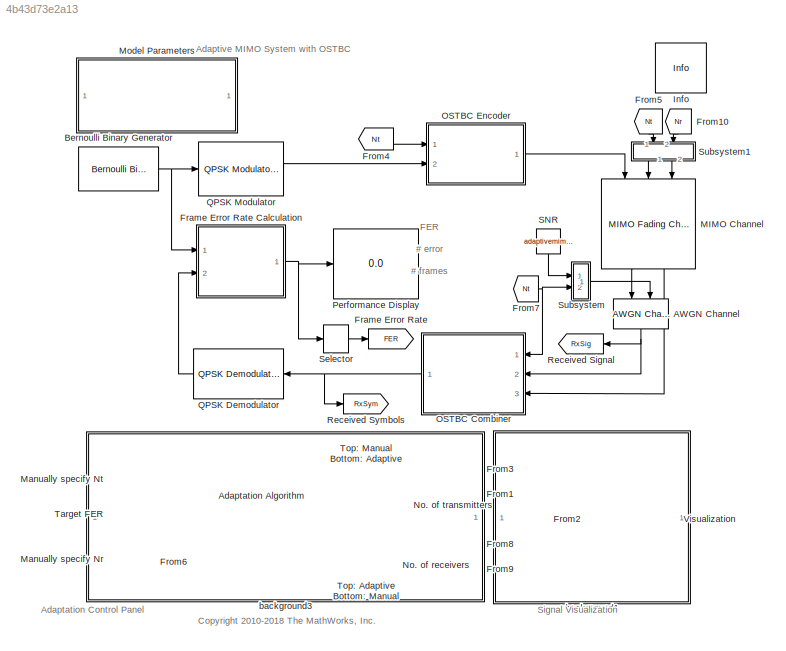
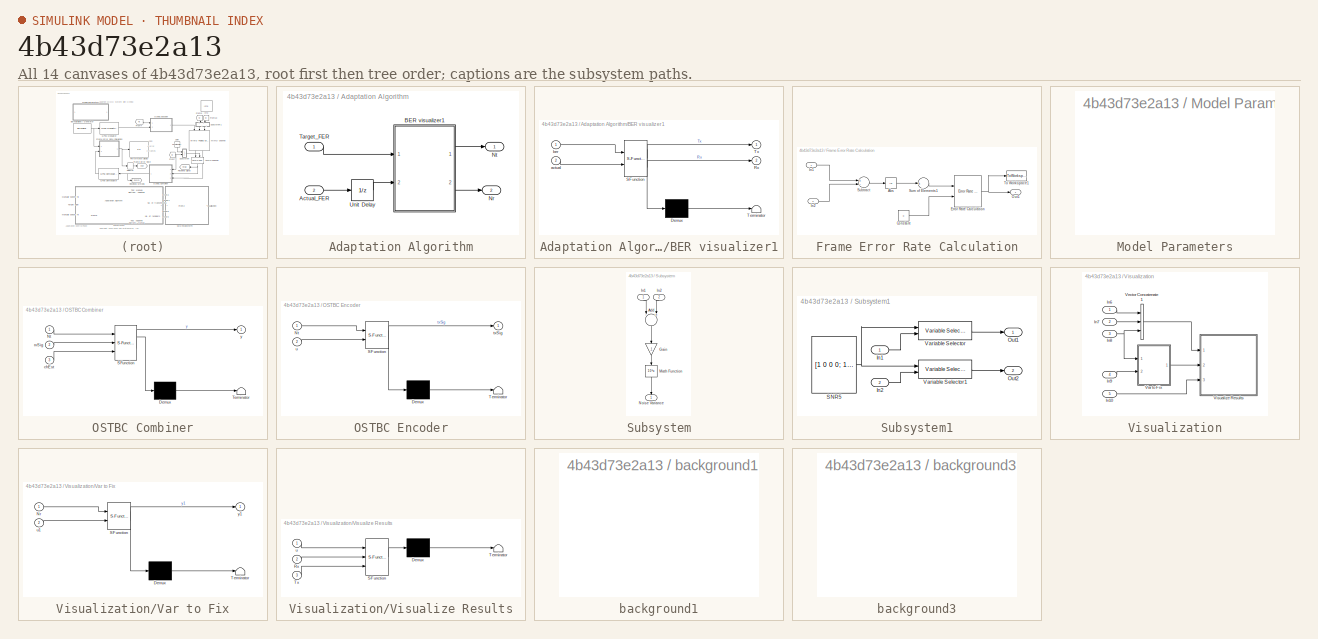
[diagram: thumbnail index - all 14 canvases of the model, root first then tree order]
MODEL slx_4b43d73e2a13
KIND model
CONFIG AbsTol = auto
CONFIG EnableMultiTasking = on
CONFIG FixedStep = auto
CONFIG MaxStep = auto
CONFIG MinStep = auto
CONFIG PreLoadFcn = adaptivemimo.FrameLen=120;\nadaptivemimo.SNR=10;\nadaptivemimo.TargetFER=2e-1;\nadaptivemimo.MaxNumErrs=500;\nadaptivemimo.MaxNumFrames=5e6;\n\n
CONFIG RelTol = 1e-3
CONFIG SampleTimeConstraint = Unconstrained
CONFIG Solver = FixedStepDiscrete
CONFIG SolverName = FixedStepDiscrete
CONFIG StartTime = 0.0
CONFIG StopTime = inf
BLOCK [Reference] AWGN Channel  REF=commvarsize/AWGN
Channel
  Ports = [2, 1]
  SourceBlock = commvarsize/AWGN\nChannel
  SourceProductBaseCode = CM
  SourceProductName = Communications Toolbox
  SourceType = comm.AWGNChannel
BLOCK [SubSystem] Adaptation Algorithm
  Ports = [2, 2]
  RequestExecContextInheritance = off
BLOCK [Inport] Adaptation Algorithm/Actual_FER
  IconDisplay = Port number
  Port = 2
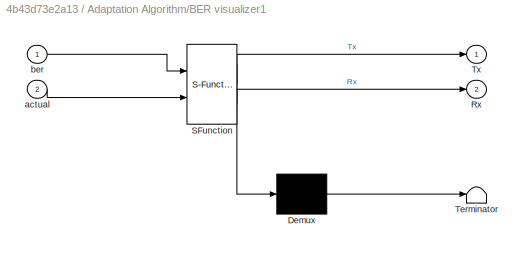
BLOCK [SubSystem] Adaptation Algorithm/BER visualizer1
  ErrorFcn = Stateflow.Translate.translate
  PermitHierarchicalResolution = ExplicitOnly
  Ports = [2, 2]
  RequestExecContextInheritance = off
  SFBlockType = MATLAB Function
  TreatAsAtomicUnit = on
BLOCK [Demux] Adaptation Algorithm/BER visualizer1/ Demux 
  Outputs = 1
  Ports = [1, 1]
BLOCK [S-Function] Adaptation Algorithm/BER visualizer1/ SFunction 
  EnableBusSupport = on
  FunctionName = sf_sfun
  PortCounts = [2 3]
  Ports = [2, 3]
  SFcnIsStateOwnerBlock = off
  SFunctionDeploymentMode = off
  Tag = Stateflow S-Function commadaptivemimo 6
BLOCK [Terminator] Adaptation Algorithm/BER visualizer1/ Terminator 
BLOCK [Outport] Adaptation Algorithm/BER visualizer1/Rx
  IconDisplay = Port number
  Port = 2
BLOCK [Outport] Adaptation Algorithm/BER visualizer1/Tx
  IconDisplay = Port number
BLOCK [Inport] Adaptation Algorithm/BER visualizer1/actual
  IconDisplay = Port number
  Port = 2
BLOCK [Inport] Adaptation Algorithm/BER visualizer1/ber
  IconDisplay = Port number
BLOCK [Outport] Adaptation Algorithm/Nr
  IconDisplay = Port number
  Port = 2
BLOCK [Outport] Adaptation Algorithm/Nt
  IconDisplay = Port number
BLOCK [Inport] Adaptation Algorithm/Target_FER
  IconDisplay = Port number
BLOCK [UnitDelay] Adaptation Algorithm/Unit Delay
  InitialCondition = 1
  InputProcessing = Elements as channels (sample based)
  SampleTime = -1
BLOCK [Reference] Bernoulli Binary Generator  REF=commrandsrc3/Bernoulli Binary
Generator
  Ports = [0, 1]
  SourceBlock = commrandsrc3/Bernoulli Binary\nGenerator
  SourceProductBaseCode = CM
  SourceProductName = Communications Toolbox
  SourceType = Bernoulli Binary Generator
BLOCK [Goto] Frame Error Rate
  GotoTag = FER
BLOCK [SubSystem] Frame Error Rate Calculation
  Ports = [2, 1]
  RequestExecContextInheritance = off
BLOCK [Abs] Frame Error Rate Calculation/Abs
  SaturateOnIntegerOverflow = off
BLOCK [Constant] Frame Error Rate Calculation/Constant
  OutDataTypeStr = uint16
  Value = 0
BLOCK [Reference] Frame Error Rate Calculation/Error Rate Calculation  REF=commsink2/Error Rate
Calculation
  Ports = [2, 1]
  SourceBlock = commsink2/Error Rate\nCalculation
  SourceProductBaseCode = CM
  SourceProductName = Communications Toolbox
  SourceType = Error Rate Calculation
BLOCK [Inport] Frame Error Rate Calculation/In1
  IconDisplay = Port number
BLOCK [Inport] Frame Error Rate Calculation/In2
  IconDisplay = Port number
  Port = 2
BLOCK [Outport] Frame Error Rate Calculation/Out1
  IconDisplay = Port number
BLOCK [Sum] Frame Error Rate Calculation/Subtract
  AccumDataTypeStr = int8
  InputSameDT = off
  Inputs = +-
  OutDataTypeStr = int8
  Ports = [2, 1]
  SaturateOnIntegerOverflow = off
BLOCK [Sum] Frame Error Rate Calculation/Sum of Elements1
  AccumDataTypeStr = uint16
  InputSameDT = off
  Inputs = +
  OutDataTypeStr = uint16
  Ports = [1, 1]
BLOCK [ToWorkspace] Frame Error Rate Calculation/To Workspace1
  MaxDataPoints = 1
  Ports = [1]
  SampleTime = -1
  Save2DSignal = 3-D array (concatenate along third dimension)
  VariableName = FER_Data
BLOCK [From] From1
  GotoTag = Nt
BLOCK [From] From10
  GotoTag = Nr
BLOCK [From] From2
  GotoTag = Nr
BLOCK [From] From3
  GotoTag = FER
BLOCK [From] From4
  GotoTag = Nt
BLOCK [From] From5
  GotoTag = Nt
BLOCK [From] From6
  GotoTag = FER
BLOCK [From] From7
  GotoTag = Nt
BLOCK [From] From8
  GotoTag = RxSig
BLOCK [From] From9
  GotoTag = RxSym
BLOCK [Reference] Info  REF=commblksprivate/Info
  Ports = []
  SourceBlock = commblksprivate/Info
  SourceProductBaseCode = CM
  SourceProductName = Communications Toolbox
  SourceType = Info
BLOCK [Reference] MIMO Channel  REF=commchan3/MIMO Fading Channel
  Ports = [3, 2]
  SourceBlock = commchan3/MIMO Fading Channel
  SourceProductBaseCode = CM
  SourceProductName = Communications Toolbox
  SourceType = MIMO Fading Channel
BLOCK [Constant] Manually specify Nr
  OutDataTypeStr = double
BLOCK [Constant] Manually specify Nt
  OutDataTypeStr = double
  Value = 2
BLOCK [SubSystem] Model Parameters
  Ports = []
  RequestExecContextInheritance = off
BLOCK [Goto] No. of receivers
  GotoTag = Nr
BLOCK [Goto] No. of transmitters
  GotoTag = Nt
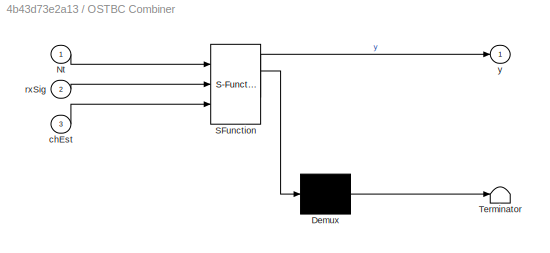
BLOCK [SubSystem] OSTBC Combiner
  ErrorFcn = Stateflow.Translate.translate
  PermitHierarchicalResolution = ExplicitOnly
  Ports = [3, 1]
  RequestExecContextInheritance = off
  SFBlockType = MATLAB Function
  TreatAsAtomicUnit = on
BLOCK [Demux] OSTBC Combiner/ Demux 
  Outputs = 1
  Ports = [1, 1]
BLOCK [S-Function] OSTBC Combiner/ SFunction 
  EnableBusSupport = on
  FunctionName = sf_sfun
  Parameters = adaptivemimo
  PortCounts = [3 2]
  Ports = [3, 2]
  SFcnIsStateOwnerBlock = off
  SFunctionDeploymentMode = off
  Tag = Stateflow S-Function commadaptivemimo 1
BLOCK [Terminator] OSTBC Combiner/ Terminator 
BLOCK [Inport] OSTBC Combiner/Nt
  IconDisplay = Port number
BLOCK [Inport] OSTBC Combiner/chEst
  IconDisplay = Port number
  Port = 3
BLOCK [Inport] OSTBC Combiner/rxSig
  IconDisplay = Port number
  Port = 2
BLOCK [Outport] OSTBC Combiner/y
  IconDisplay = Port number
BLOCK [SubSystem] OSTBC Encoder
  ErrorFcn = Stateflow.Translate.translate
  PermitHierarchicalResolution = ExplicitOnly
  Ports = [2, 1]
  RequestExecContextInheritance = off
  SFBlockType = MATLAB Function
  TreatAsAtomicUnit = on
BLOCK [Demux] OSTBC Encoder/ Demux 
  Outputs = 1
  Ports = [1, 1]
BLOCK [S-Function] OSTBC Encoder/ SFunction 
  EnableBusSupport = on
  FunctionName = sf_sfun
  PortCounts = [2 2]
  Ports = [2, 2]
  SFcnIsStateOwnerBlock = off
  SFunctionDeploymentMode = off
  Tag = Stateflow S-Function commadaptivemimo 2
BLOCK [Terminator] OSTBC Encoder/ Terminator 
BLOCK [Inport] OSTBC Encoder/Nt
  IconDisplay = Port number
BLOCK [Outport] OSTBC Encoder/txSig
  IconDisplay = Port number
BLOCK [Inport] OSTBC Encoder/u
  IconDisplay = Port number
  Port = 2
BLOCK [Display] Performance Display
  Decimation = 1
  Ports = [1]
BLOCK [Reference] QPSK Demodulator  REF=commdigbbndpm3/QPSK
Demodulator
Baseband
  Ports = [1, 1]
  SourceBlock = commdigbbndpm3/QPSK\nDemodulator\nBaseband
  SourceProductBaseCode = CM
  SourceProductName = Communications Toolbox
  SourceType = QPSK Demodulator Baseband
BLOCK [Reference] QPSK Modulator  REF=commdigbbndpm3/QPSK
Modulator
Baseband
  Ports = [1, 1]
  SourceBlock = commdigbbndpm3/QPSK\nModulator\nBaseband
  SourceProductBaseCode = CM
  SourceProductName = Communications Toolbox
  SourceType = QPSK Modulator Baseband
BLOCK [Goto] Received Signal
  GotoTag = RxSig
BLOCK [Goto] Received Symbols
  GotoTag = RxSym
BLOCK [Constant] SNR
  OutDataTypeStr = double
  Value = adaptivemimo.SNR
BLOCK [Selector] Selector
  IndexOptions = Index vector (dialog)
  Indices = 1
  InputPortWidth = 3
  OutputSizes = 1
  Ports = [1, 1]
BLOCK [SubSystem] Subsystem
  Ports = [2, 1]
  RequestExecContextInheritance = off
BLOCK [Sum] Subsystem/Add
  InputSameDT = off
  Inputs = -+
  OutDataTypeStr = Inherit: Inherit via internal rule
  Ports = [2, 1]
  SaturateOnIntegerOverflow = off
BLOCK [Gain] Subsystem/Gain
  Gain = .1
  OutDataTypeStr = Inherit: Inherit via internal rule
  ParamDataTypeStr = Inherit: Inherit via internal rule
  SaturateOnIntegerOverflow = off
BLOCK [Inport] Subsystem/In1
  IconDisplay = Port number
BLOCK [Inport] Subsystem/In2
  IconDisplay = Port number
  Port = 2
BLOCK [Math] Subsystem/Math Function
  Operator = 10^u
  Ports = [1, 1]
BLOCK [Outport] Subsystem/Noise Variance
  IconDisplay = Port number
BLOCK [SubSystem] Subsystem1
  Ports = [2, 2]
  RequestExecContextInheritance = off
BLOCK [Inport] Subsystem1/In1
  IconDisplay = Port number
BLOCK [Inport] Subsystem1/In2
  IconDisplay = Port number
  Port = 2
BLOCK [Outport] Subsystem1/Out1
  IconDisplay = Port number
BLOCK [Outport] Subsystem1/Out2
  IconDisplay = Port number
  Port = 2
BLOCK [Constant] Subsystem1/SNR5
  OutDataTypeStr = double
  Value = [1 0 0 0; 1 1 0 0; 1 1 1 0; 1 1 1 1]
  VectorParams1D = off
BLOCK [Reference] Subsystem1/Variable Selector  REF=dspindex/Variable
Selector
  Ports = [2, 1]
  SourceBlock = dspindex/Variable\nSelector
  SourceProductBaseCode = DS
  SourceProductName = DSP System Toolbox
  SourceType = Variable Selector
BLOCK [Reference] Subsystem1/Variable Selector1  REF=dspindex/Variable
Selector
  Ports = [2, 1]
  SourceBlock = dspindex/Variable\nSelector
  SourceProductBaseCode = DS
  SourceProductName = DSP System Toolbox
  SourceType = Variable Selector
BLOCK [Constant] Target FER
  OutDataTypeStr = double
  Value = adaptivemimo.TargetFER
BLOCK [ManualSwitch] Top: Adaptive Bottom: Manual
BLOCK [ManualSwitch] Top: Manual Bottom: Adaptive
  CurrentSetting = 0
BLOCK [SubSystem] Visualization
  OpenFcn = blk=gcb;                                     \ngfig = findobj('type', 'figure', 'tag', blk);\nif isempty(gfig)                             \n        gfig = openfig('commadaptivemimo');  \n        set(gfig, 'tag', blk);               \nelse                                         \n    close(gfig);                             \nend
  Ports = [5]
  RequestExecContextInheritance = off
BLOCK [Inport] Visualization/In10
  IconDisplay = Port number
  Port = 5
BLOCK [Inport] Visualization/In6
  IconDisplay = Port number
BLOCK [Inport] Visualization/In7
  IconDisplay = Port number
  Port = 2
BLOCK [Inport] Visualization/In8
  IconDisplay = Port number
  Port = 3
BLOCK [Inport] Visualization/In9
  IconDisplay = Port number
  Port = 4
BLOCK [SubSystem] Visualization/Var to Fix
  ErrorFcn = Stateflow.Translate.translate
  PermitHierarchicalResolution = ExplicitOnly
  Ports = [2, 1]
  RequestExecContextInheritance = off
  SFBlockType = MATLAB Function
  TreatAsAtomicUnit = on
BLOCK [Demux] Visualization/Var to Fix/ Demux 
  Outputs = 1
  Ports = [1, 1]
BLOCK [S-Function] Visualization/Var to Fix/ SFunction 
  EnableBusSupport = on
  FunctionName = sf_sfun
  Parameters = adaptivemimo
  PortCounts = [2 2]
  Ports = [2, 2]
  SFcnIsStateOwnerBlock = off
  SFunctionDeploymentMode = off
  Tag = Stateflow S-Function commadaptivemimo 3
BLOCK [Terminator] Visualization/Var to Fix/ Terminator 
BLOCK [Inport] Visualization/Var to Fix/Nr
  IconDisplay = Port number
BLOCK [Inport] Visualization/Var to Fix/u1
  IconDisplay = Port number
  Port = 2
BLOCK [Outport] Visualization/Var to Fix/y1
  IconDisplay = Port number
BLOCK [Concatenate] Visualization/Vector Concatenate1
  NumInputs = 3
  Ports = [3, 1]
BLOCK [SubSystem] Visualization/Visualize Results
  ErrorFcn = Stateflow.Translate.translate
  PermitHierarchicalResolution = ExplicitOnly
  Ports = [3]
  RequestExecContextInheritance = off
  SFBlockType = MATLAB Function
  TreatAsAtomicUnit = on
BLOCK [Demux] Visualization/Visualize Results/ Demux 
  Outputs = 1
  Ports = [1, 1]
BLOCK [S-Function] Visualization/Visualize Results/ SFunction 
  EnableBusSupport = on
  FunctionName = sf_sfun
  PortCounts = [3 1]
  Ports = [3, 1]
  SFcnIsStateOwnerBlock = off
  SFunctionDeploymentMode = off
  Tag = Stateflow S-Function commadaptivemimo 5
BLOCK [Terminator] Visualization/Visualize Results/ Terminator 
BLOCK [Inport] Visualization/Visualize Results/Rx
  IconDisplay = Port number
  Port = 2
BLOCK [Inport] Visualization/Visualize Results/Tx
  IconDisplay = Port number
  Port = 3
BLOCK [Inport] Visualization/Visualize Results/u
  IconDisplay = Port number
BLOCK [SubSystem] background1
  Ports = []
  RequestExecContextInheritance = off
BLOCK [SubSystem] background3
  Ports = []
  RequestExecContextInheritance = off
ANNOTATION (root): Adaptation Control Panel
ANNOTATION (root): Adaptive MIMO System with OSTBC
ANNOTATION (root): <copyright redacted>
ANNOTATION (root): FER # error # frames
ANNOTATION (root): Signal Visualization
NET AWGN Channel:1 -> OSTBC Combiner:2, Received Signal:1
LINE Adaptation Algorithm/Actual_FER:1 -> Adaptation Algorithm/Unit Delay:1
LINE Adaptation Algorithm/BER visualizer1:1 -> Adaptation Algorithm/Nt:1
LINE Adaptation Algorithm/BER visualizer1:2 -> Adaptation Algorithm/Nr:1
LINE Adaptation Algorithm/Target_FER:1 -> Adaptation Algorithm/BER visualizer1:1
LINE Adaptation Algorithm/Unit Delay:1 -> Adaptation Algorithm/BER visualizer1:2
LINE Adaptation Algorithm:1 -> Top: Manual Bottom: Adaptive:2
LINE Adaptation Algorithm:2 -> Top: Adaptive Bottom: Manual:1
NET Bernoulli Binary Generator:1 -> Frame Error Rate Calculation:1, QPSK Modulator:1
LINE Frame Error Rate Calculation/Abs:1 -> Frame Error Rate Calculation/Sum of Elements1:1
LINE Frame Error Rate Calculation/Constant:1 -> Frame Error Rate Calculation/Error Rate Calculation:2
NET Frame Error Rate Calculation/Error Rate Calculation:1 -> Frame Error Rate Calculation/Out1:1, Frame Error Rate Calculation/To Workspace1:1
LINE Frame Error Rate Calculation/In1:1 -> Frame Error Rate Calculation/Subtract:1
LINE Frame Error Rate Calculation/In2:1 -> Frame Error Rate Calculation/Subtract:2
LINE Frame Error Rate Calculation/Subtract:1 -> Frame Error Rate Calculation/Abs:1
LINE Frame Error Rate Calculation/Sum of Elements1:1 -> Frame Error Rate Calculation/Error Rate Calculation:1
NET Frame Error Rate Calculation:1 -> Performance Display:1, Selector:1
LINE From10:1 -> Subsystem1:2
LINE From1:1 -> Visualization:2
LINE From2:1 -> Visualization:3
LINE From3:1 -> Visualization:1
LINE From4:1 -> OSTBC Encoder:1
LINE From5:1 -> Subsystem1:1
LINE From6:1 -> Adaptation Algorithm:2
NET From7:1 -> OSTBC Combiner:1, Subsystem:2
LINE From8:1 -> Visualization:4
LINE From9:1 -> Visualization:5
LINE MIMO Channel:1 -> AWGN Channel:1
LINE MIMO Channel:2 -> OSTBC Combiner:3
LINE Manually specify Nr:1 -> Top: Adaptive Bottom: Manual:2
LINE Manually specify Nt:1 -> Top: Manual Bottom: Adaptive:1
NET OSTBC Combiner:1 -> QPSK Demodulator:1, Received Symbols:1
LINE OSTBC Encoder:1 -> MIMO Channel:1
LINE QPSK Demodulator:1 -> Frame Error Rate Calculation:2
LINE QPSK Modulator:1 -> OSTBC Encoder:2
LINE SNR:1 -> Subsystem:1
LINE Selector:1 -> Frame Error Rate:1
LINE Subsystem/Add:1 -> Subsystem/Gain:1
LINE Subsystem/Gain:1 -> Subsystem/Math Function:1
LINE Subsystem/In1:1 -> Subsystem/Add:1
LINE Subsystem/In2:1 -> Subsystem/Add:2
LINE Subsystem/Math Function:1 -> Subsystem/Noise Variance:1
LINE Subsystem1/In1:1 -> Subsystem1/Variable Selector:2
LINE Subsystem1/In2:1 -> Subsystem1/Variable Selector1:2
NET Subsystem1/SNR5:1 -> Subsystem1/Variable Selector1:1, Subsystem1/Variable Selector:1
LINE Subsystem1/Variable Selector1:1 -> Subsystem1/Out2:1
LINE Subsystem1/Variable Selector:1 -> Subsystem1/Out1:1
LINE Subsystem1:1 -> MIMO Channel:2
LINE Subsystem1:2 -> MIMO Channel:3
LINE Subsystem:1 -> AWGN Channel:2
LINE Target FER:1 -> Adaptation Algorithm:1
LINE Top: Adaptive Bottom: Manual:1 -> No. of receivers:1
LINE Top: Manual Bottom: Adaptive:1 -> No. of transmitters:1
LINE Visualization/In10:1 -> Visualization/Visualize Results:3
LINE Visualization/In6:1 -> Visualization/Vector Concatenate1:1
LINE Visualization/In7:1 -> Visualization/Vector Concatenate1:2
NET Visualization/In8:1 -> Visualization/Var to Fix:1, Visualization/Vector Concatenate1:3
LINE Visualization/In9:1 -> Visualization/Var to Fix:2
LINE Visualization/Var to Fix:1 -> Visualization/Visualize Results:2
LINE Visualization/Vector Concatenate1:1 -> Visualization/Visualize Results:1
note: NET lines group one-source signal fan-out (src -> all destinations, sorted); 1:1 wires keep LINE
CHART OSTBC Combiner states=1 transitions=1
  STATE_LABEL 'eML_blk_kernel()'
  STATE_LABEL "SCRIPT:\nfunction y = ostbc_combiner(Nt, rxSig, chEst, adaptivemimo)\n%#codegen\n\npersistent h2Tx1Rx h2Tx2Rx h2Tx3Rx h2Tx4Rx h3Tx1Rx h3Tx2Rx h3Tx3Rx h3Tx4Rx h4Tx1Rx h4Tx2Rx h4Tx3Rx h4Tx4Rx\nif isempty(h2Tx1Rx)\n    h2Tx1Rx = comm.OSTBCCombiner('NumTransmitAntennas', 2, 'NumReceiveAntennas',  1);\n    h2Tx2Rx = comm.OSTBCCombiner('NumTransmitAntennas', 2, 'NumReceiveAntennas',  2);\n    h2Tx3Rx = comm.OST...<+2321ch>"
CHART OSTBC Encoder states=1 transitions=1
  STATE_LABEL 'eML_blk_kernel()'
  STATE_LABEL "SCRIPT:\nfunction txSig = ostbc_encoder(Nt, u)\n%#codegen\n\npersistent h2Tx h3Tx h4Tx\nif isempty(h2Tx)\n    h2Tx = comm.OSTBCEncoder('NumTransmitAntennas', 2);\n    h3Tx = comm.OSTBCEncoder('NumTransmitAntennas', 3);\n    h4Tx = comm.OSTBCEncoder('NumTransmitAntennas', 4);    \nend\n\nswitch Nt\n    case 2\n        txSig = step(h2Tx, u);\n    case 3\n        txSig = step(h3Tx, u);\n    case 4\n        txSig = st...<+66ch>"
CHART Visualization/Var to Fix states=1 transitions=1
  STATE_LABEL 'eML_blk_kernel()'
  STATE_LABEL 'SCRIPT:\nfunction y1 =var2fix(Nr, u1,adaptivemimo)\n%#codegen\nFrameLen=adaptivemimo.FrameLen;\ny1=complex(nan(2*FrameLen/3,4));\nfor n=1:Nr\n    y1(1:size(u1,1),n)=u1(:,n);\nend\n'
CHART Visualization/Visualize Results states=1 transitions=1
  STATE_LABEL 'eML_blk_kernel()'
  STATE_LABEL "SCRIPT:\nfunction VisualizeMe(u,Rx,Tx)\n%#codegen\n N=300;  \npersistent fc ber\nif isempty(fc)\n    fc=1;\n    ber=nan(N,1);\nend\n%\ncoder.extrinsic('findobj','axes','semilogy','bar',      'set','plot');\n%\nif ~strcmp(coder.target, 'rtw') \n    gfig = findobj('type', 'figure', 'tag', 'commadaptivemimo/Visualization');\n    if isempty(gfig)\n        fc=1;\n    else\n        ax1 = findobj('type', 'axes', 'tag','M...<+1938ch>"
CHART Adaptation Algorithm/BER visualizer1 states=1 transitions=1
  STATE_LABEL 'eML_blk_kernel()'
  STATE_LABEL 'SCRIPT:\nfunction [Tx,Rx]=Adaptation(ber,actual)\n%#codegen\nmu=0.2;\npersistent v\nif isempty(v)\n    v=[1 1];\nend\nTx=fix(v(1));\nRx=fix(v(2));\nerr=actual-ber;\nv=v+mu*([0.9 1.1].*sign(err));\nv(v<1)=1;\nv(v>4)=4;\n'
